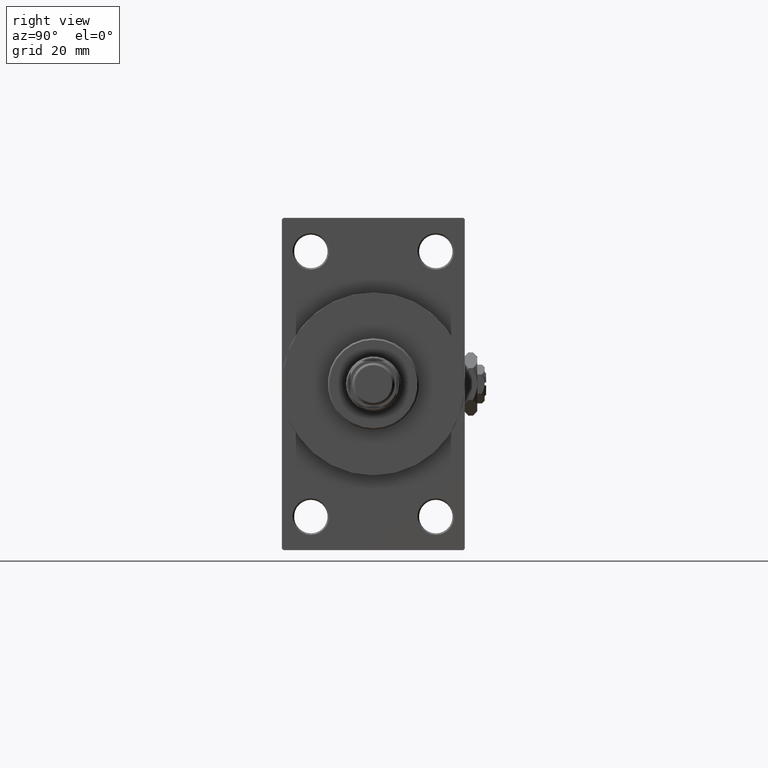
[diagram: clean part render]
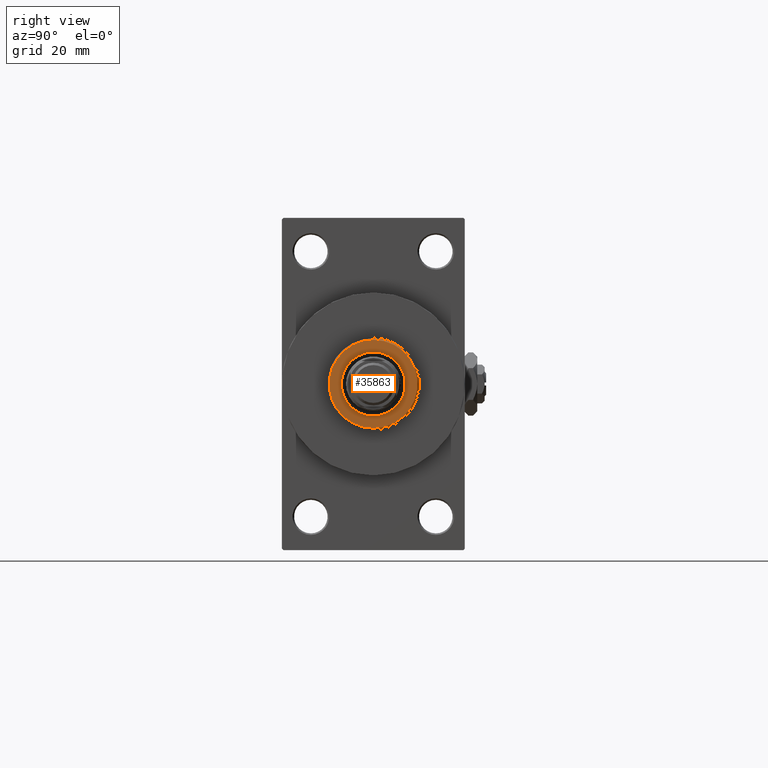
[diagram: same view with one face highlighted and labeled with its STEP entity id]
A machine part, right view. The second image highlights one B-rep face of the part: STEP entity #35863.
In plain terms, the highlighted planar face has unit normal (1, -0, -0).
Its self-contained STEP definition (entity closure, byte-faithful):
#194 = CARTESIAN_POINT ( 'NONE',  ( 0.000000000000000000, 0.000000000000000000, 51.25999999999999801 ) ) ;
#2009 = PLANE ( 'NONE',  #33146 ) ;
#2903 = EDGE_LOOP ( 'NONE', ( #22897, #29120 ) ) ;
#3500 = CARTESIAN_POINT ( 'NONE',  ( -10.50000000000000000, 1.285879139104720831E-15, 51.25999999999999801 ) ) ;
#6276 = ORIENTED_EDGE ( 'NONE', *, *, #40541, .T. ) ;
#7992 = DIRECTION ( 'NONE',  ( 1.000000000000000000, 0.000000000000000000, 0.000000000000000000 ) ) ;
#9618 = DIRECTION ( 'NONE',  ( 1.000000000000000000, 0.000000000000000000, 0.000000000000000000 ) ) ;
#9664 = EDGE_LOOP ( 'NONE', ( #6276, #20909 ) ) ;
#13787 = DIRECTION ( 'NONE',  ( 1.000000000000000000, 0.000000000000000000, 0.000000000000000000 ) ) ;
#15591 = AXIS2_PLACEMENT_3D ( 'NONE', #25742, #29257, #9618 ) ;
#16280 = DIRECTION ( 'NONE',  ( 0.000000000000000000, 0.000000000000000000, 1.000000000000000000 ) ) ;
#16284 = DIRECTION ( 'NONE',  ( 0.000000000000000000, 0.000000000000000000, 1.000000000000000000 ) ) ;
#16707 = AXIS2_PLACEMENT_3D ( 'NONE', #46996, #16284, #27880 ) ;
#16724 = VERTEX_POINT ( 'NONE', #19104 ) ;
#17355 = CARTESIAN_POINT ( 'NONE',  ( 0.000000000000000000, 0.000000000000000000, 51.25999999999999801 ) ) ;
#19104 = CARTESIAN_POINT ( 'NONE',  ( -14.49999999999999112, 0.000000000000000000, 51.25999999999999801 ) ) ;
#20909 = ORIENTED_EDGE ( 'NONE', *, *, #49252, .T. ) ;
#21568 = EDGE_CURVE ( 'NONE', #37173, #39041, #30371, .T. ) ;
#22005 = CIRCLE ( 'NONE', #15591, 14.49999999999999112 ) ;
#22046 = AXIS2_PLACEMENT_3D ( 'NONE', #36958, #24614, #13787 ) ;
#22271 = CARTESIAN_POINT ( 'NONE',  ( 14.49999999999999112, 1.806354028742345013E-15, 51.25999999999999801 ) ) ;
#22897 = ORIENTED_EDGE ( 'NONE', *, *, #41220, .F. ) ;
#24614 = DIRECTION ( 'NONE',  ( 0.000000000000000000, 0.000000000000000000, 1.000000000000000000 ) ) ;
#24676 = CARTESIAN_POINT ( 'NONE',  ( 10.50000000000000000, 0.000000000000000000, 51.25999999999999801 ) ) ;
#25742 = CARTESIAN_POINT ( 'NONE',  ( 0.000000000000000000, 0.000000000000000000, 51.25999999999999801 ) ) ;
#27880 = DIRECTION ( 'NONE',  ( 1.000000000000000000, 0.000000000000000000, 0.000000000000000000 ) ) ;
#29120 = ORIENTED_EDGE ( 'NONE', *, *, #21568, .F. ) ;
#29257 = DIRECTION ( 'NONE',  ( 0.000000000000000000, 0.000000000000000000, 1.000000000000000000 ) ) ;
#30371 = CIRCLE ( 'NONE', #16707, 10.50000000000000000 ) ;
#32732 = DIRECTION ( 'NONE',  ( 0.000000000000000000, 0.000000000000000000, 1.000000000000000000 ) ) ;
#32988 = FACE_OUTER_BOUND ( 'NONE', #9664, .T. ) ;
#33146 = AXIS2_PLACEMENT_3D ( 'NONE', #17355, #32732, #48319 ) ;
#35863 = ADVANCED_FACE ( 'NONE', ( #36508, #32988 ), #2009, .T. ) ;
#36508 = FACE_BOUND ( 'NONE', #2903, .T. ) ;
#36548 = CIRCLE ( 'NONE', #22046, 10.50000000000000000 ) ;
#36695 = CIRCLE ( 'NONE', #49565, 14.49999999999999112 ) ;
#36958 = CARTESIAN_POINT ( 'NONE',  ( 0.000000000000000000, 0.000000000000000000, 51.25999999999999801 ) ) ;
#37173 = VERTEX_POINT ( 'NONE', #3500 ) ;
#39041 = VERTEX_POINT ( 'NONE', #24676 ) ;
#40541 = EDGE_CURVE ( 'NONE', #16724, #48299, #22005, .T. ) ;
#41220 = EDGE_CURVE ( 'NONE', #39041, #37173, #36548, .T. ) ;
#46996 = CARTESIAN_POINT ( 'NONE',  ( 0.000000000000000000, 0.000000000000000000, 51.25999999999999801 ) ) ;
#48299 = VERTEX_POINT ( 'NONE', #22271 ) ;
#48319 = DIRECTION ( 'NONE',  ( 1.000000000000000000, 0.000000000000000000, -0.000000000000000000 ) ) ;
#49252 = EDGE_CURVE ( 'NONE', #48299, #16724, #36695, .T. ) ;
#49565 = AXIS2_PLACEMENT_3D ( 'NONE', #194, #16280, #7992 ) ;